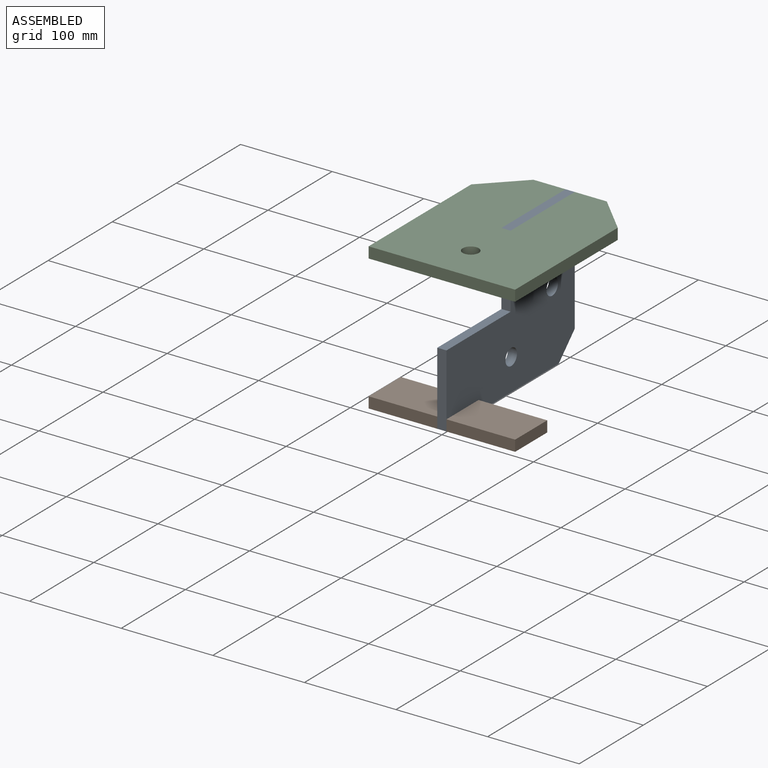
[diagram: assembled view]
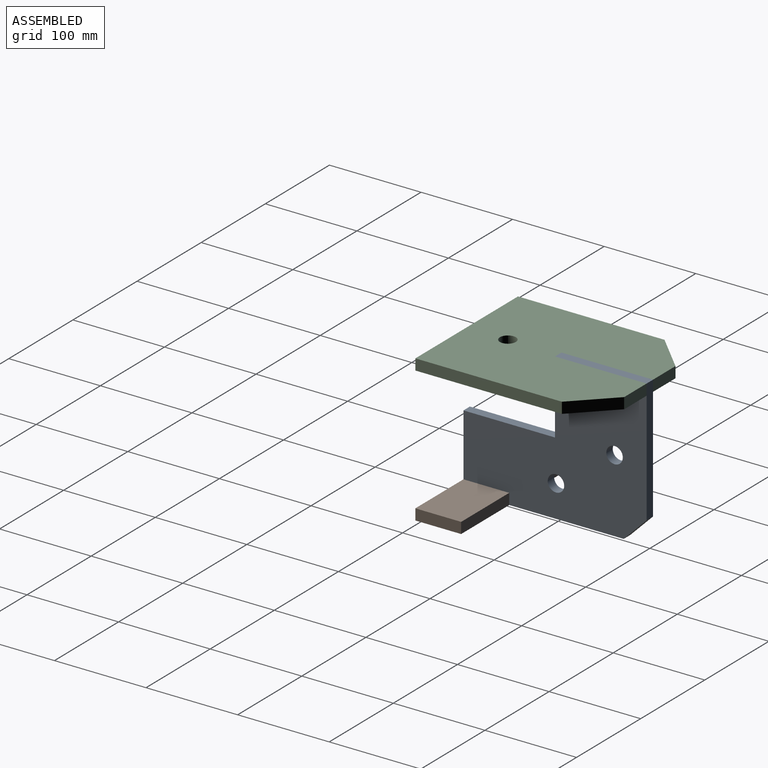
[diagram: assembled view, second angle]
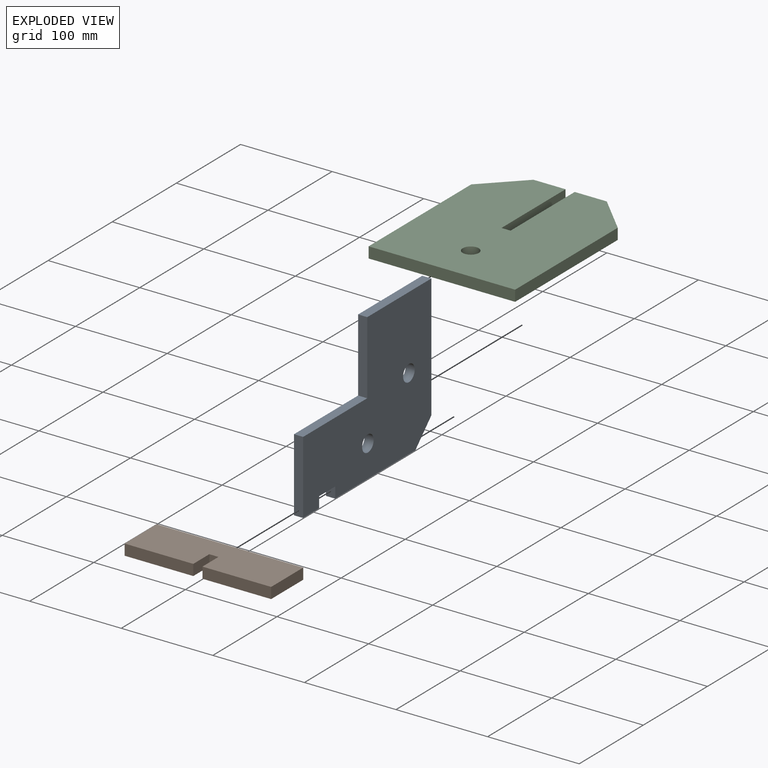
[diagram: exploded view]
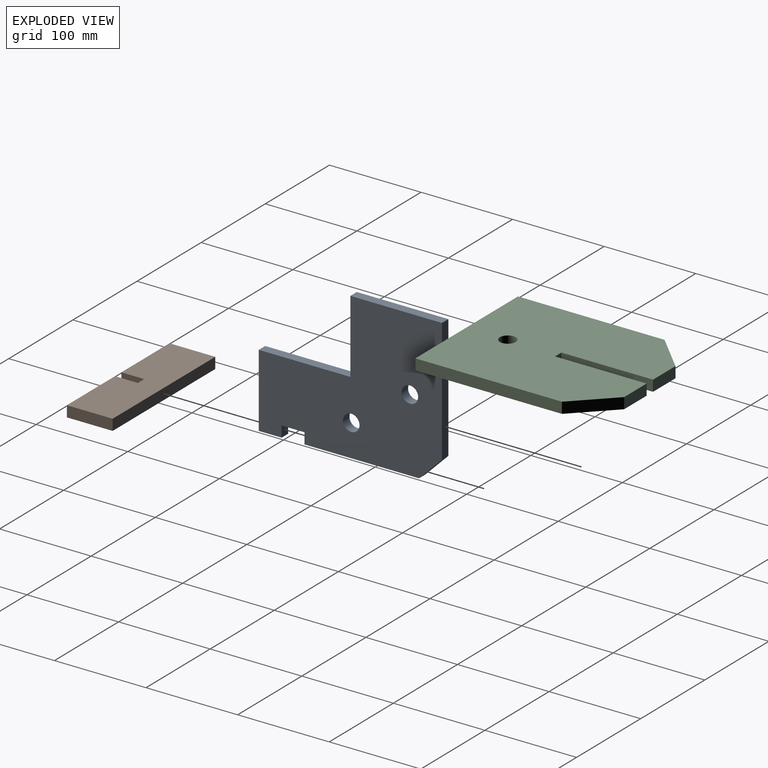
[diagram: exploded view, second angle]
ASSEMBLY  parts=3 mates=2
PART A: 15 faces, bbox 10x200x160 mm
  f0: plane 125x10mm, normal (0,0,-1), area 1250mm2, adj f1,f2,f4,f14
  f1: plane 200x160mm, normal (1,0,0), area 22878.6mm2, adj f0,f3,f4,f5,f6,f7,f8,f9
  f2: plane 200x160mm, normal (-1,0,0), area 22878.6mm2, adj f0,f3,f4,f5,f6,f7,f8,f9
  f3: plane 100x10mm, normal (0,0,1), area 1000mm2, adj f1,f2,f7,f8
  f4: plane 25x25mm, normal (0,0.71,-0.71), area 353.6mm2, adj f0,f1,f2,f11
  f5: cylinder r=9mm len=18mm, axis (1,0,0), area 565.5mm2, adj f1,f2
  f6: cylinder r=9mm len=18mm, axis (1,0,0), area 565.5mm2, adj f1,f2
  f7: plane 80x10mm, normal (0,-1,0), area 800mm2, adj f1,f2,f3,f10
  f8: plane 80x10mm, normal (0,-1,0), area 800mm2, adj f1,f2,f3,f9
  f9: plane 25x10mm, normal (0,0,-1), area 250mm2, adj f1,f2,f8,f13
  f10: plane 100x10mm, normal (0,0,1), area 1000mm2, adj f1,f2,f7,f11
  f11: plane 135x10mm, normal (0,1,0), area 1350mm2, adj f1,f2,f4,f10
  f12: plane 25x10mm, normal (0,0,-1), area 250mm2, adj f1,f2,f13,f14
  f13: plane 12x10mm, normal (0,1,0), area 120mm2, adj f1,f2,f9,f12
  f14: plane 12x10mm, normal (0,-1,0), area 120mm2, adj f0,f1,f2,f12
PART B: 10 faces, bbox 160x50x12 mm
  f0: plane 75x12mm, normal (0,-1,0), area 900mm2, adj f1,f7,f8,f9
  f1: plane 25x12mm, normal (-1,0,0), area 300mm2, adj f0,f2,f8,f9
  f2: plane 12x10mm, normal (0,-1,0), area 120mm2, adj f1,f3,f8,f9
  f3: plane 25x12mm, normal (1,0,0), area 300mm2, adj f2,f4,f8,f9
  f4: plane 75x12mm, normal (0,-1,0), area 900mm2, adj f3,f5,f8,f9
  f5: plane 50x12mm, normal (-1,0,0), area 600mm2, adj f4,f6,f8,f9
  f6: plane 160x12mm, normal (0,1,0), area 1920mm2, adj f5,f7,f8,f9
  f7: plane 50x12mm, normal (1,0,0), area 600mm2, adj f0,f6,f8,f9
  f8: plane 160x50mm, normal (0,0,1), area 7750mm2, adj f0,f1,f2,f3,f4,f5,f6,f7
  f9: plane 160x50mm, normal (0,0,-1), area 7750mm2, adj f0,f1,f2,f3,f4,f5,f6,f7
PART C: 13 faces, bbox 160x200x12 mm
  f0: plane 35x12mm, normal (0,1,0), area 420mm2, adj f2,f3,f8,f10
  f1: plane 35x12mm, normal (0,1,0), area 420mm2, adj f2,f3,f7,f12
  f2: plane 200x160mm, normal (0,0,1), area 29159.5mm2, adj f0,f1,f4,f5,f6,f7,f8,f9
  f3: plane 200x160mm, normal (0,0,-1), area 29159.5mm2, adj f0,f1,f4,f5,f6,f7,f8,f9
  f4: plane 160x12mm, normal (0,-1,0), area 1920mm2, adj f2,f3,f5,f6
  f5: plane 160x12mm, normal (-1,0,0), area 1920mm2, adj f2,f3,f4,f8
  f6: plane 160x12mm, normal (1,0,0), area 1920mm2, adj f2,f3,f4,f7
  f7: plane 40x40mm, normal (0.71,0.71,0), area 678.8mm2, adj f1,f2,f3,f6
  f8: plane 40x40mm, normal (-0.71,0.71,0), area 678.8mm2, adj f0,f2,f3,f5
  f9: cylinder r=8.75mm len=17.5mm, axis (0,0,1), area 659.7mm2, adj f2,f3
  f10: plane 100x12mm, normal (1,0,0), area 1200mm2, adj f0,f2,f3,f11
  f11: plane 12x10mm, normal (0,1,0), area 120mm2, adj f2,f3,f10,f12
  f12: plane 100x12mm, normal (-1,0,0), area 1200mm2, adj f1,f2,f3,f11
PLACE A at identity
PLACE B at identity
PLACE C at identity
MATE fastened B.f2 <-> A.f13  axis (0,-1,0) through (0,-75,-68)mm
MATE fastened C.f11 <-> A.f7  axis (0,1,0) through (0,0,80)mm
